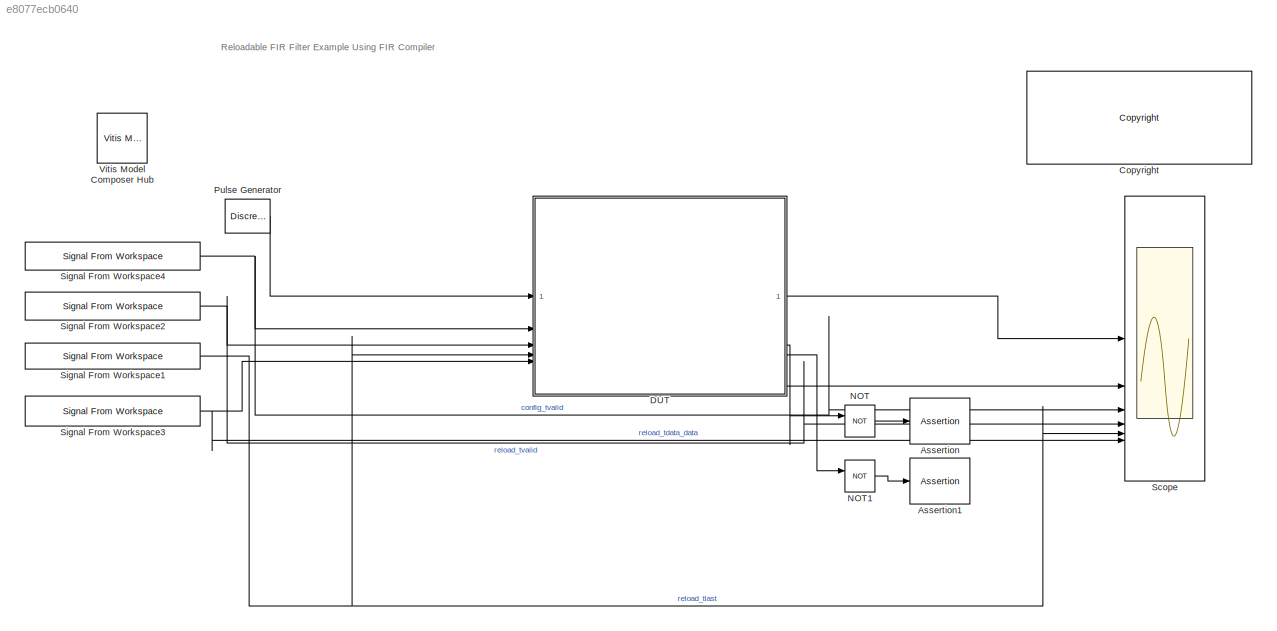
MODEL slx_e8077ecb0640
KIND model
CONFIG AbsTol = auto
CONFIG EnableMultiTasking = on
CONFIG FixedStep = auto
CONFIG MaxStep = 1
CONFIG MinStep = auto
CONFIG RelTol = 1e-3
CONFIG SampleTimeConstraint = Unconstrained
CONFIG SolverName = VariableStepDiscrete
CONFIG StartTime = 0.0
CONFIG StopTime = 100
BLOCK [Assertion] Assertion
BLOCK [Assertion] Assertion1
BLOCK [Reference] <copyright redacted>
  SourceBlock = hdlUtilities/<copyright redacted>
  SourceType = Xilinx <copyright redacted>
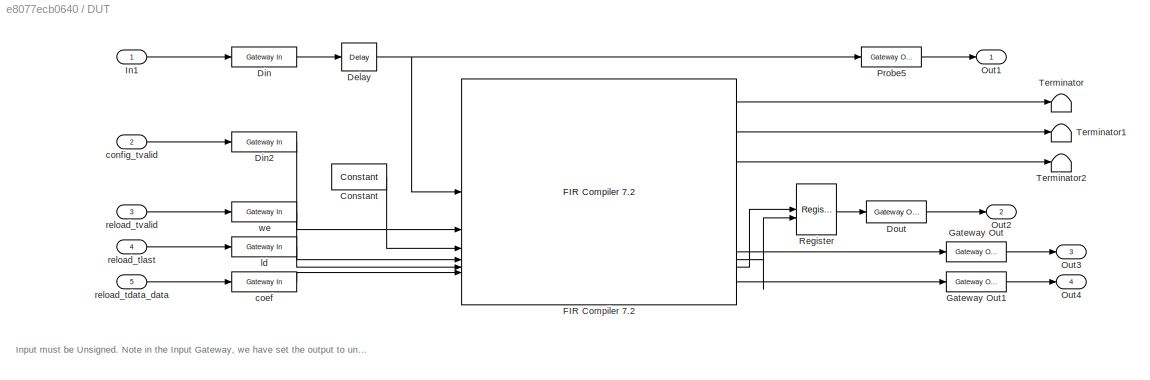
BLOCK [SubSystem] DUT
BLOCK [Reference] DUT/Constant  REF=hdlBasic/Constant
  SourceBlock = hdlBasic/Constant
  SourceType = Constant Block Block
BLOCK [Reference] DUT/Delay  REF=hdlBasic/Delay
  SourceBlock = hdlBasic/Delay
  SourceType = Delay Block
BLOCK [Reference] DUT/Din  REF=hdlBasic/Gateway In
  SourceBlock = hdlBasic/Gateway In
  SourceType = Gateway In Block
BLOCK [Reference] DUT/Din2  REF=hdlBasic/Gateway In
  SourceBlock = hdlBasic/Gateway In
  SourceType = Gateway In Block
BLOCK [Reference] DUT/Dout  REF=hdlBasic/Gateway Out
  SourceBlock = hdlBasic/Gateway Out
  SourceType = Gateway Out Block
BLOCK [Reference] DUT/FIR Compiler 7.2  REF=hdlDSPIP/FIR Compiler 7.2 
  SourceBlock = hdlDSPIP/FIR Compiler 7.2
  SourceType = FIR Compiler 7.2 Block
BLOCK [Reference] DUT/Gateway Out  REF=hdlBasic/Gateway Out
  SourceBlock = hdlBasic/Gateway Out
  SourceType = Gateway Out Block
BLOCK [Reference] DUT/Gateway Out1  REF=hdlBasic/Gateway Out
  SourceBlock = hdlBasic/Gateway Out
  SourceType = Gateway Out Block
BLOCK [Inport] DUT/In1
BLOCK [Outport] DUT/Out1
BLOCK [Outport] DUT/Out2
  Port = 2
BLOCK [Outport] DUT/Out3
  Port = 3
BLOCK [Outport] DUT/Out4
  Port = 4
BLOCK [Reference] DUT/Probe5  REF=hdlBasic/Gateway Out
  SourceBlock = hdlBasic/Gateway Out
  SourceType = Gateway Out Block
BLOCK [Reference] DUT/Register  REF=hdlBasic/Register
  SourceBlock = hdlBasic/Register
  SourceType = Register Block
BLOCK [Terminator] DUT/Terminator
BLOCK [Terminator] DUT/Terminator1
BLOCK [Terminator] DUT/Terminator2
BLOCK [Reference] DUT/coef  REF=hdlBasic/Gateway In
  SourceBlock = hdlBasic/Gateway In
  SourceType = Gateway In Block
BLOCK [Inport] DUT/config_tvalid
  Port = 2
BLOCK [Reference] DUT/ld  REF=hdlBasic/Gateway In
  SourceBlock = hdlBasic/Gateway In
  SourceType = Gateway In Block
BLOCK [Inport] DUT/reload_tdata_data
  Port = 5
BLOCK [Inport] DUT/reload_tlast
  Port = 4
BLOCK [Inport] DUT/reload_tvalid
  Port = 3
BLOCK [Reference] DUT/we  REF=hdlBasic/Gateway In
  SourceBlock = hdlBasic/Gateway In
  SourceType = Gateway In Block
BLOCK [Logic] NOT
  AllPortsSameDT = off
  IconShape = distinctive
  Operator = NOT
  OutDataTypeStr = boolean
BLOCK [Logic] NOT1
  AllPortsSameDT = off
  IconShape = distinctive
  Operator = NOT
  OutDataTypeStr = boolean
BLOCK [DiscretePulseGenerator] Pulse Generator
  Period = 30
  VectorParams1D = off
BLOCK [Scope] Scope
  Floating = off
  NumInputPorts = 6
  ScopeSpecificationString = Simulink.scopes.TimeScopeBlockCfg('CurrentConfiguration', extmgr.ConfigurationSet(extmgr.Configuration('Core','General UI',true),extmgr.Configuration('Sources','WiredSimulink',true,'DataLoggingVariableName','ScopeData1','DataLoggingLimitDataPoints',true,'DataLoggingDecimateData',true,'DataLoggingDecimation','1','DataLoggingSaveFormat','Structure With Time'),extmgr.Configuration('Visuals','Time Dom...<+5387ch>
BLOCK [Reference] Signal From Workspace1  REF=dspsrcs4/Signal From
Workspace
  SourceBlock = dspsrcs4/Signal From\nWorkspace
  SourceType = Signal From Workspace
BLOCK [Reference] Signal From Workspace2  REF=dspsrcs4/Signal From
Workspace
  SourceBlock = dspsrcs4/Signal From\nWorkspace
  SourceType = Signal From Workspace
BLOCK [Reference] Signal From Workspace3  REF=dspsrcs4/Signal From
Workspace
  SourceBlock = dspsrcs4/Signal From\nWorkspace
  SourceType = Signal From Workspace
BLOCK [Reference] Signal From Workspace4  REF=dspsrcs4/Signal From
Workspace
  SourceBlock = dspsrcs4/Signal From\nWorkspace
  SourceType = Signal From Workspace
BLOCK [Reference] Vitis Model Composer Hub  REF=vmcUtilities/Vitis Model Composer Hub
  SourceBlock = vmcUtilities/Vitis Model Composer Hub
  SourceType = VMC Hub
  Tag = genX
  UserDataPersistent = on
ANNOTATION (root): Reloadable FIR Filter Example Using FIR Compiler
ANNOTATION DUT: Input must be Unsigned. Note in the Input Gateway, we have set the output to unsigned and the Overflow mode to wrap.
LINE DUT/Constant:1 -> DUT/FIR Compiler 7.2:3
NET DUT/Delay:1 -> DUT/FIR Compiler 7.2:1, DUT/Probe5:1
LINE DUT/Din2:1 -> DUT/FIR Compiler 7.2:2
LINE DUT/Din:1 -> DUT/Delay:1
LINE DUT/Dout:1 -> DUT/Out2:1
LINE DUT/FIR Compiler 7.2:1 -> DUT/Terminator:1
LINE DUT/FIR Compiler 7.2:2 -> DUT/Terminator1:1
LINE DUT/FIR Compiler 7.2:3 -> DUT/Terminator2:1
LINE DUT/FIR Compiler 7.2:4 -> DUT/Register:2
LINE DUT/FIR Compiler 7.2:5 -> DUT/Register:1
LINE DUT/FIR Compiler 7.2:6 -> DUT/Gateway Out:1
LINE DUT/FIR Compiler 7.2:7 -> DUT/Gateway Out1:1
LINE DUT/Gateway Out1:1 -> DUT/Out4:1
LINE DUT/Gateway Out:1 -> DUT/Out3:1
LINE DUT/In1:1 -> DUT/Din:1
LINE DUT/Probe5:1 -> DUT/Out1:1
LINE DUT/Register:1 -> DUT/Dout:1
LINE DUT/coef:1 -> DUT/FIR Compiler 7.2:6
LINE DUT/config_tvalid:1 -> DUT/Din2:1
LINE DUT/ld:1 -> DUT/FIR Compiler 7.2:5
LINE DUT/reload_tdata_data:1 -> DUT/coef:1
LINE DUT/reload_tlast:1 -> DUT/ld:1
LINE DUT/reload_tvalid:1 -> DUT/we:1
LINE DUT/we:1 -> DUT/FIR Compiler 7.2:4
LINE DUT:1 -> Scope:1
LINE DUT:2 -> Scope:2
LINE DUT:3 -> NOT:1
LINE DUT:4 -> NOT1:1
LINE NOT1:1 -> Assertion1:1
LINE NOT:1 -> Assertion:1
LINE Pulse Generator:1 -> DUT:1
NET Signal From Workspace1:1 -> DUT:4, Scope:5
NET Signal From Workspace2:1 -> DUT:3, Scope:4
NET Signal From Workspace3:1 -> DUT:5, Scope:6
NET Signal From Workspace4:1 -> DUT:2, Scope:3
note: NET lines group one-source signal fan-out (src -> all destinations, sorted); 1:1 wires keep LINE
